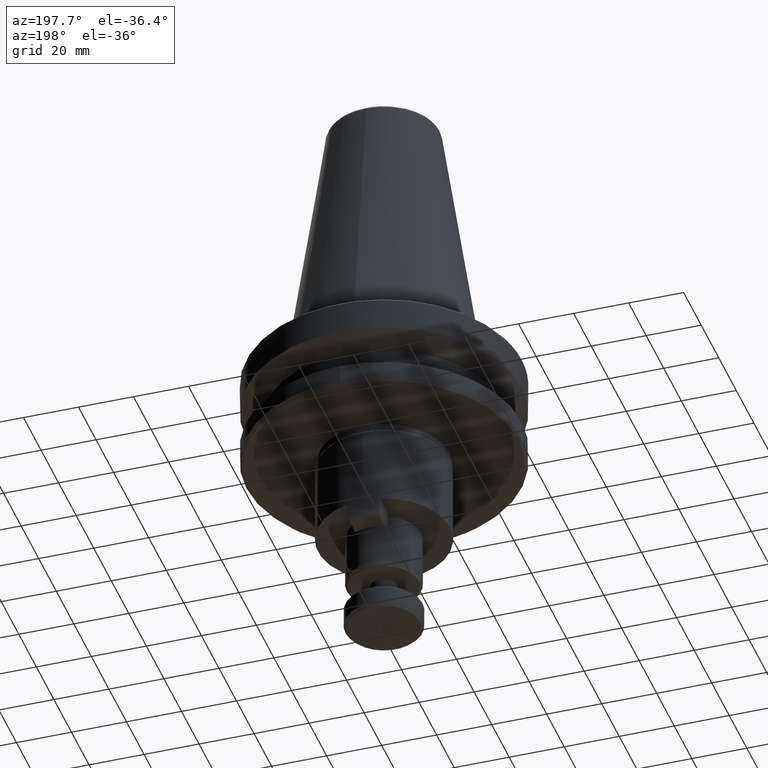
[diagram: clean part render]
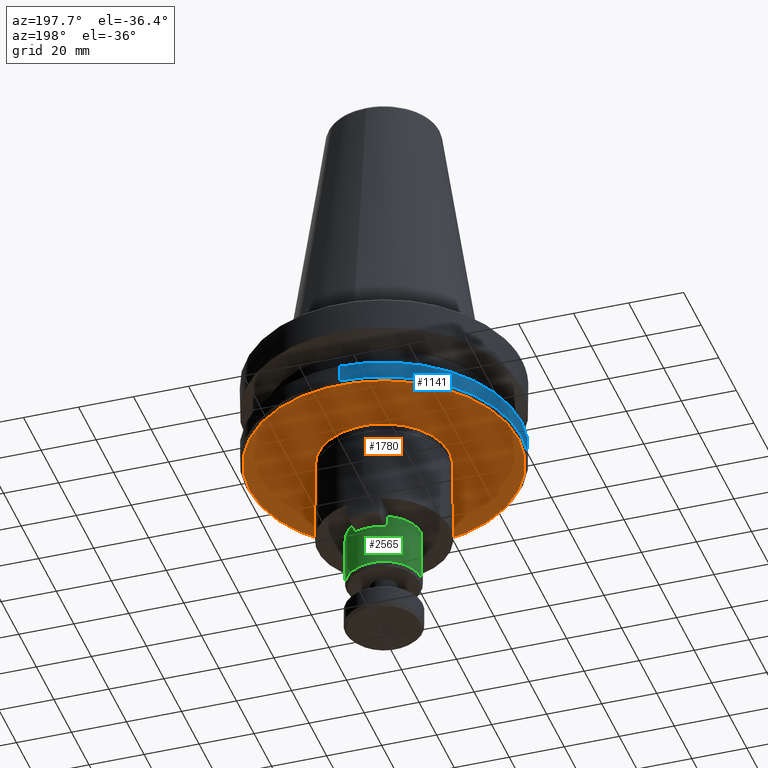
[diagram: same view with three faces highlighted in distinct colors, each labeled with its STEP entity id]
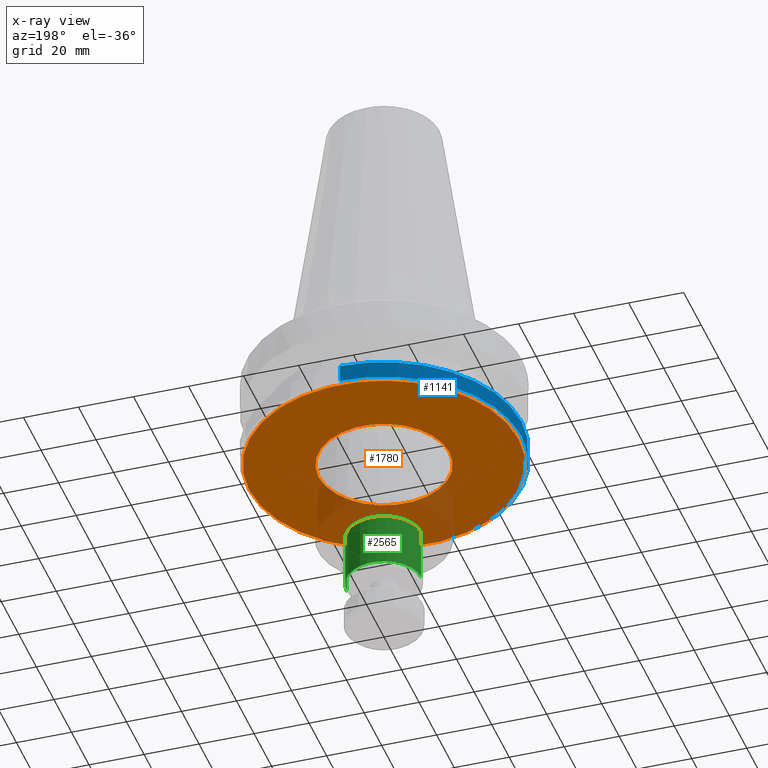
[diagram: x-ray of the same camera — body ghosted, the three highlighted faces saturated]
A machine part, auxiliary view with three faces highlighted in distinct colors.
The next image is the same camera in x-ray (body ghosted, the three faces saturated) — at least one of them is partly hidden behind the body in this view.
Their STEP definitions:

[orange] entity #1780 — the highlighted planar face has unit normal (0, 0, -1).
#206 = DIRECTION ( 'NONE',  ( 0.0000000000000000000, 1.457628432398332300E-016, 1.000000000000000000 ) ) ;
#216 = EDGE_CURVE ( 'NONE', #2805, #1537, #2735, .T. ) ;
#364 = CIRCLE ( 'NONE', #2739, 48.99999999999996400 ) ;
#403 = CARTESIAN_POINT ( 'NONE',  ( -23.80038499835556500, -7.322310844724459600E-009, -38.00000000034932400 ) ) ;
#534 = AXIS2_PLACEMENT_3D ( 'NONE', #1027, #1029, #662 ) ;
#536 = FACE_OUTER_BOUND ( 'NONE', #2357, .T. ) ;
#557 = ORIENTED_EDGE ( 'NONE', *, *, #216, .T. ) ;
#610 = EDGE_CURVE ( 'NONE', #1616, #1364, #630, .T. ) ;
#630 = CIRCLE ( 'NONE', #534, 48.99999999999996400 ) ;
#662 = DIRECTION ( 'NONE',  ( 1.000000000000000000, 0.0000000000000000000, 0.0000000000000000000 ) ) ;
#751 = ORIENTED_EDGE ( 'NONE', *, *, #2433, .F. ) ;
#790 = EDGE_LOOP ( 'NONE', ( #557, #2030 ) ) ;
#791 = AXIS2_PLACEMENT_3D ( 'NONE', #1292, #1866, #1405 ) ;
#968 = CARTESIAN_POINT ( 'NONE',  ( 23.80038499835540500, -3.661156515669965500E-009, -38.00000000035294800 ) ) ;
#990 = CIRCLE ( 'NONE', #1177, 23.80038499845365500 ) ;
#1027 = CARTESIAN_POINT ( 'NONE',  ( 0.0000000000000000000, 0.0000000000000000000, -38.00000000000003600 ) ) ;
#1029 = DIRECTION ( 'NONE',  ( 0.0000000000000000000, 0.0000000000000000000, 1.000000000000000000 ) ) ;
#1087 = FACE_BOUND ( 'NONE', #790, .T. ) ;
#1095 = CARTESIAN_POINT ( 'NONE',  ( 0.0000000000000000000, 8.378307421769558900E-018, -38.00000000000514400 ) ) ;
#1177 = AXIS2_PLACEMENT_3D ( 'NONE', #1095, #206, #2717 ) ;
#1292 = CARTESIAN_POINT ( 'NONE',  ( 0.0000000000000000000, -8.378307371071483900E-018, -38.00000000035294800 ) ) ;
#1364 = VERTEX_POINT ( 'NONE', #2423 ) ;
#1405 = DIRECTION ( 'NONE',  ( 0.0000000000000000000, -1.000000000000000000, 0.0000000000000000000 ) ) ;
#1452 = DIRECTION ( 'NONE',  ( 1.000000000000000000, 0.0000000000000000000, 0.0000000000000000000 ) ) ;
#1537 = VERTEX_POINT ( 'NONE', #968 ) ;
#1616 = VERTEX_POINT ( 'NONE', #2742 ) ;
#1780 = ADVANCED_FACE ( 'NONE', ( #536, #1087 ), #2371, .T. ) ;
#1866 = DIRECTION ( 'NONE',  ( 0.0000000000000000000, -1.457628432398332300E-016, 1.000000000000000000 ) ) ;
#2030 = ORIENTED_EDGE ( 'NONE', *, *, #2399, .T. ) ;
#2100 = DIRECTION ( 'NONE',  ( 0.0000000000000000000, 0.0000000000000000000, 1.000000000000000000 ) ) ;
#2189 = ORIENTED_EDGE ( 'NONE', *, *, #610, .F. ) ;
#2246 = AXIS2_PLACEMENT_3D ( 'NONE', #2364, #2350, #2348 ) ;
#2348 = DIRECTION ( 'NONE',  ( -1.000000000000000000, 0.0000000000000000000, -0.0000000000000000000 ) ) ;
#2350 = DIRECTION ( 'NONE',  ( 0.0000000000000000000, 0.0000000000000000000, -1.000000000000000000 ) ) ;
#2357 = EDGE_LOOP ( 'NONE', ( #751, #2189 ) ) ;
#2364 = CARTESIAN_POINT ( 'NONE',  ( 49.58800000000000100, -49.58800000000000100, -38.00000000000000000 ) ) ;
#2371 = PLANE ( 'NONE',  #2246 ) ;
#2399 = EDGE_CURVE ( 'NONE', #1537, #2805, #990, .T. ) ;
#2423 = CARTESIAN_POINT ( 'NONE',  ( 48.99999999999996400, 0.0000000000000000000, -38.00000000000003600 ) ) ;
#2433 = EDGE_CURVE ( 'NONE', #1364, #1616, #364, .T. ) ;
#2496 = CARTESIAN_POINT ( 'NONE',  ( 0.0000000000000000000, 0.0000000000000000000, -38.00000000000003600 ) ) ;
#2717 = DIRECTION ( 'NONE',  ( 0.0000000000000000000, -1.000000000000000000, 0.0000000000000000000 ) ) ;
#2735 = CIRCLE ( 'NONE', #791, 23.80038499843838200 ) ;
#2739 = AXIS2_PLACEMENT_3D ( 'NONE', #2496, #2100, #1452 ) ;
#2742 = CARTESIAN_POINT ( 'NONE',  ( -48.99999999999996400, 6.062001655779394600E-015, -38.00000000000003600 ) ) ;
#2805 = VERTEX_POINT ( 'NONE', #403 ) ;

[blue] entity #1141 — the highlighted cylindrical surface (partial cylindrical patch) has radius 50 mm, axis along (0, -0, 1).
#47 = VECTOR ( 'NONE', #1178, 1000.000000000000000 ) ;
#94 = VERTEX_POINT ( 'NONE', #1631 ) ;
#192 = CARTESIAN_POINT ( 'NONE',  ( 0.0000000000000000000, -50.00000000000000000, -37.00000000000003600 ) ) ;
#199 = CARTESIAN_POINT ( 'NONE',  ( 0.0000000000000000000, -50.00000000000000000, -37.00000000000000700 ) ) ;
#205 = DIRECTION ( 'NONE',  ( 0.0000000000000000000, -6.938893903907228400E-017, 1.000000000000000000 ) ) ;
#208 = CARTESIAN_POINT ( 'NONE',  ( 0.0000000000000000000, 0.0000000000000000000, -37.00000000000000000 ) ) ;
#210 = DIRECTION ( 'NONE',  ( 0.0000000000000000000, -1.000000000000000000, -1.387778780781445700E-016 ) ) ;
#221 = DIRECTION ( 'NONE',  ( 0.0000000000000000000, -6.938893903907228400E-017, 1.000000000000000000 ) ) ;
#282 = CIRCLE ( 'NONE', #1257, 50.00000000000000000 ) ;
#283 = AXIS2_PLACEMENT_3D ( 'NONE', #1188, #605, #579 ) ;
#309 = FACE_OUTER_BOUND ( 'NONE', #1401, .T. ) ;
#411 = CIRCLE ( 'NONE', #283, 50.00000000000000000 ) ;
#520 = ORIENTED_EDGE ( 'NONE', *, *, #2473, .T. ) ;
#579 = DIRECTION ( 'NONE',  ( 0.0000000000000000000, -1.000000000000000000, 0.0000000000000000000 ) ) ;
#590 = CARTESIAN_POINT ( 'NONE',  ( 6.123233995736766100E-015, 50.00000000000000000, -36.99999999999999300 ) ) ;
#598 = VERTEX_POINT ( 'NONE', #649 ) ;
#605 = DIRECTION ( 'NONE',  ( 0.0000000000000000000, -6.938893903907228400E-017, 1.000000000000000000 ) ) ;
#649 = CARTESIAN_POINT ( 'NONE',  ( 6.123233995736766100E-015, 50.00000000000000000, -37.00000000000003600 ) ) ;
#691 = LINE ( 'NONE', #590, #47 ) ;
#845 = EDGE_CURVE ( 'NONE', #598, #1820, #411, .T. ) ;
#906 = DIRECTION ( 'NONE',  ( 0.0000000000000000000, -1.000000000000000000, 0.0000000000000000000 ) ) ;
#911 = EDGE_CURVE ( 'NONE', #598, #2358, #691, .T. ) ;
#920 = ORIENTED_EDGE ( 'NONE', *, *, #845, .T. ) ;
#977 = DIRECTION ( 'NONE',  ( -1.000000000000000000, 0.0000000000000000000, 0.0000000000000000000 ) ) ;
#1017 = LINE ( 'NONE', #199, #1514 ) ;
#1141 = ADVANCED_FACE ( 'NONE', ( #309 ), #1446, .T. ) ;
#1170 = EDGE_CURVE ( 'NONE', #1190, #94, #1017, .T. ) ;
#1178 = DIRECTION ( 'NONE',  ( 0.0000000000000000000, -6.938893903907228400E-017, 1.000000000000000000 ) ) ;
#1188 = CARTESIAN_POINT ( 'NONE',  ( 0.0000000000000000000, 2.407412430484044800E-030, -37.00000000000003600 ) ) ;
#1189 = CARTESIAN_POINT ( 'NONE',  ( 0.0000000000000000000, 0.0000000000000000000, -30.69977999700000400 ) ) ;
#1190 = VERTEX_POINT ( 'NONE', #192 ) ;
#1257 = AXIS2_PLACEMENT_3D ( 'NONE', #1311, #1287, #906 ) ;
#1287 = DIRECTION ( 'NONE',  ( 0.0000000000000000000, -6.938893903907228400E-017, 1.000000000000000000 ) ) ;
#1311 = CARTESIAN_POINT ( 'NONE',  ( 0.0000000000000000000, 2.407412430484044800E-030, -37.00000000000003600 ) ) ;
#1401 = EDGE_LOOP ( 'NONE', ( #2003, #920, #520, #2720, #1504 ) ) ;
#1446 = CYLINDRICAL_SURFACE ( 'NONE', #2455, 50.00000000000000000 ) ;
#1504 = ORIENTED_EDGE ( 'NONE', *, *, #2683, .F. ) ;
#1514 = VECTOR ( 'NONE', #221, 1000.000000000000000 ) ;
#1631 = CARTESIAN_POINT ( 'NONE',  ( 6.123233995736765300E-015, -50.00000000000000000, -30.69977999700000400 ) ) ;
#1820 = VERTEX_POINT ( 'NONE', #2339 ) ;
#1851 = AXIS2_PLACEMENT_3D ( 'NONE', #1189, #2439, #977 ) ;
#1905 = CIRCLE ( 'NONE', #1851, 50.00000000000000000 ) ;
#2003 = ORIENTED_EDGE ( 'NONE', *, *, #911, .F. ) ;
#2339 = CARTESIAN_POINT ( 'NONE',  ( -49.99999999999997200, 6.123233995736762100E-015, -37.00000000000003600 ) ) ;
#2358 = VERTEX_POINT ( 'NONE', #2733 ) ;
#2439 = DIRECTION ( 'NONE',  ( -0.0000000000000000000, -0.0000000000000000000, 1.000000000000000000 ) ) ;
#2455 = AXIS2_PLACEMENT_3D ( 'NONE', #208, #205, #210 ) ;
#2473 = EDGE_CURVE ( 'NONE', #1820, #1190, #282, .T. ) ;
#2683 = EDGE_CURVE ( 'NONE', #2358, #94, #1905, .T. ) ;
#2720 = ORIENTED_EDGE ( 'NONE', *, *, #1170, .T. ) ;
#2733 = CARTESIAN_POINT ( 'NONE',  ( 0.0000000000000000000, 50.00000000000000700, -30.69977999700000400 ) ) ;

[green] entity #2565 — the highlighted cylindrical surface (partial cylindrical patch) has radius 13.5 mm, axis along (0, 0, 1).
#29 = AXIS2_PLACEMENT_3D ( 'NONE', #2574, #1524, #2790 ) ;
#422 = DIRECTION ( 'NONE',  ( 1.000000000000000000, 0.0000000000000000000, 0.0000000000000000000 ) ) ;
#515 = LINE ( 'NONE', #1338, #2656 ) ;
#542 = CARTESIAN_POINT ( 'NONE',  ( 13.50000000000000000, 0.0000000000000000000, -89.52775681399998600 ) ) ;
#674 = LINE ( 'NONE', #1210, #1838 ) ;
#709 = ORIENTED_EDGE ( 'NONE', *, *, #2204, .F. ) ;
#736 = CARTESIAN_POINT ( 'NONE',  ( -13.50000000000000000, 1.653273899600023900E-015, -70.19999999826201500 ) ) ;
#819 = VERTEX_POINT ( 'NONE', #736 ) ;
#891 = ORIENTED_EDGE ( 'NONE', *, *, #2745, .T. ) ;
#1138 = CIRCLE ( 'NONE', #2076, 13.50000000000000000 ) ;
#1210 = CARTESIAN_POINT ( 'NONE',  ( -13.50000000000000000, 1.653273178848926900E-015, -89.52775681399998600 ) ) ;
#1239 = ORIENTED_EDGE ( 'NONE', *, *, #2269, .T. ) ;
#1290 = FACE_OUTER_BOUND ( 'NONE', #1704, .T. ) ;
#1318 = DIRECTION ( 'NONE',  ( 0.0000000000000000000, 0.0000000000000000000, 1.000000000000000000 ) ) ;
#1326 = DIRECTION ( 'NONE',  ( 0.0000000000000000000, 0.0000000000000000000, 1.000000000000000000 ) ) ;
#1338 = CARTESIAN_POINT ( 'NONE',  ( 13.50000000000000000, 0.0000000000000000000, -89.52775681399998600 ) ) ;
#1340 = VERTEX_POINT ( 'NONE', #2056 ) ;
#1361 = DIRECTION ( 'NONE',  ( 0.0000000000000000000, 1.000000000000000000, 7.306912276884826900E-012 ) ) ;
#1366 = DIRECTION ( 'NONE',  ( -0.0000000000000000000, -7.306638991194210300E-012, 1.000000000000000000 ) ) ;
#1374 = CARTESIAN_POINT ( 'NONE',  ( 0.0000000000000000000, 0.0000000000000000000, -70.19999999826201500 ) ) ;
#1392 = CARTESIAN_POINT ( 'NONE',  ( 13.50000000000000000, 7.207510969915515900E-022, -70.19999999826201500 ) ) ;
#1493 = CIRCLE ( 'NONE', #29, 13.50000000000000000 ) ;
#1524 = DIRECTION ( 'NONE',  ( 0.0000000000000000000, 0.0000000000000000000, 1.000000000000000000 ) ) ;
#1533 = CARTESIAN_POINT ( 'NONE',  ( 0.0000000000000000000, 0.0000000000000000000, -89.52775681399998600 ) ) ;
#1542 = AXIS2_PLACEMENT_3D ( 'NONE', #1533, #1318, #422 ) ;
#1704 = EDGE_LOOP ( 'NONE', ( #1239, #891, #1742, #709 ) ) ;
#1742 = ORIENTED_EDGE ( 'NONE', *, *, #2180, .F. ) ;
#1838 = VECTOR ( 'NONE', #2664, 1000.000000000000000 ) ;
#2056 = CARTESIAN_POINT ( 'NONE',  ( -13.50000000000000000, 1.653273178848926900E-015, -89.52775681399998600 ) ) ;
#2076 = AXIS2_PLACEMENT_3D ( 'NONE', #1374, #1366, #1361 ) ;
#2180 = EDGE_CURVE ( 'NONE', #2200, #819, #1138, .T. ) ;
#2200 = VERTEX_POINT ( 'NONE', #1392 ) ;
#2204 = EDGE_CURVE ( 'NONE', #2723, #2200, #515, .T. ) ;
#2234 = CYLINDRICAL_SURFACE ( 'NONE', #1542, 13.50000000000000000 ) ;
#2269 = EDGE_CURVE ( 'NONE', #2723, #1340, #1493, .T. ) ;
#2565 = ADVANCED_FACE ( 'NONE', ( #1290 ), #2234, .T. ) ;
#2574 = CARTESIAN_POINT ( 'NONE',  ( 0.0000000000000000000, 0.0000000000000000000, -89.52775681399998600 ) ) ;
#2656 = VECTOR ( 'NONE', #1326, 1000.000000000000000 ) ;
#2664 = DIRECTION ( 'NONE',  ( 0.0000000000000000000, 0.0000000000000000000, 1.000000000000000000 ) ) ;
#2723 = VERTEX_POINT ( 'NONE', #542 ) ;
#2745 = EDGE_CURVE ( 'NONE', #1340, #819, #674, .T. ) ;
#2790 = DIRECTION ( 'NONE',  ( 1.000000000000000000, 0.0000000000000000000, 0.0000000000000000000 ) ) ;